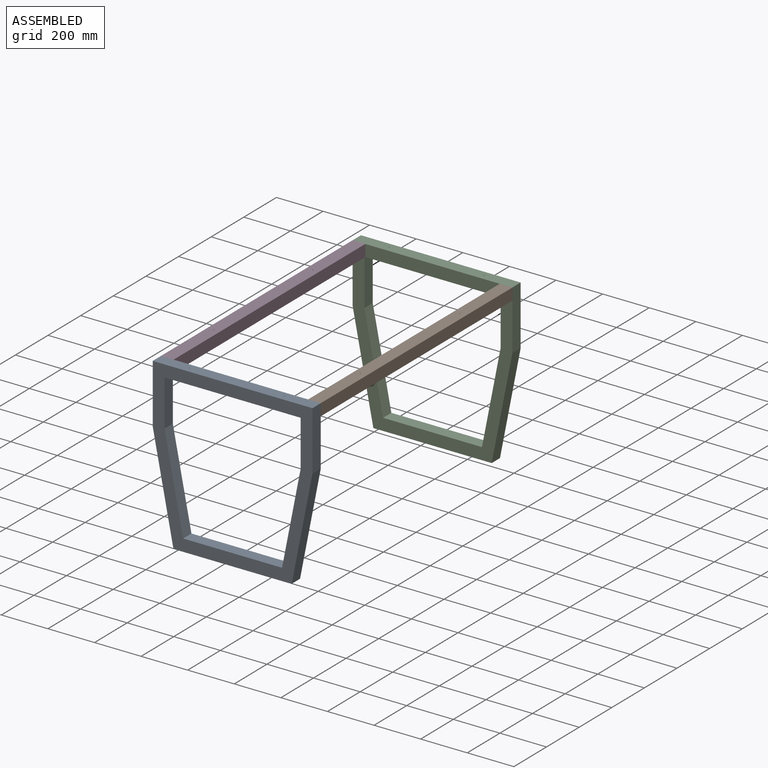
[diagram: assembled view]
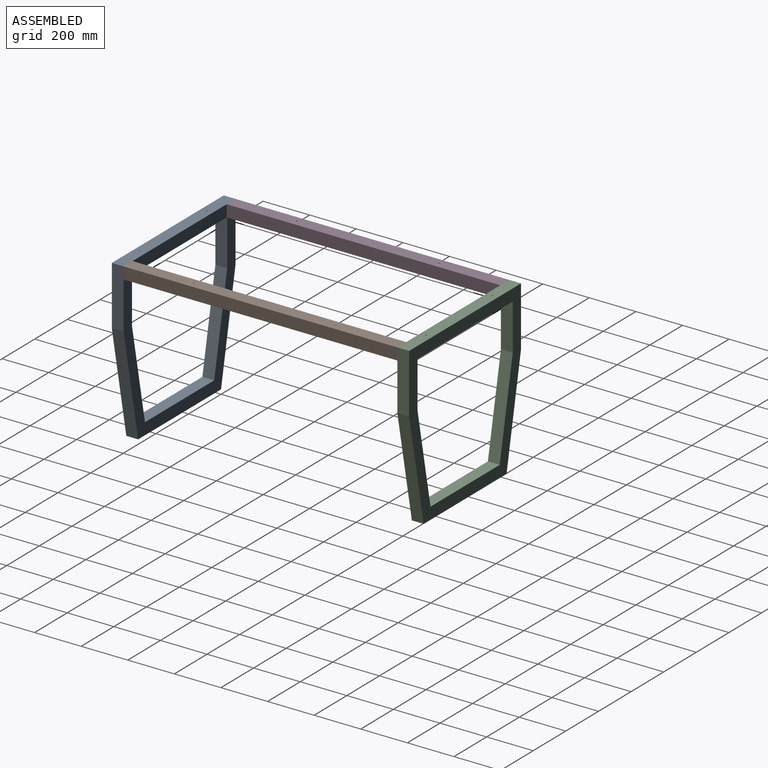
[diagram: assembled view, second angle]
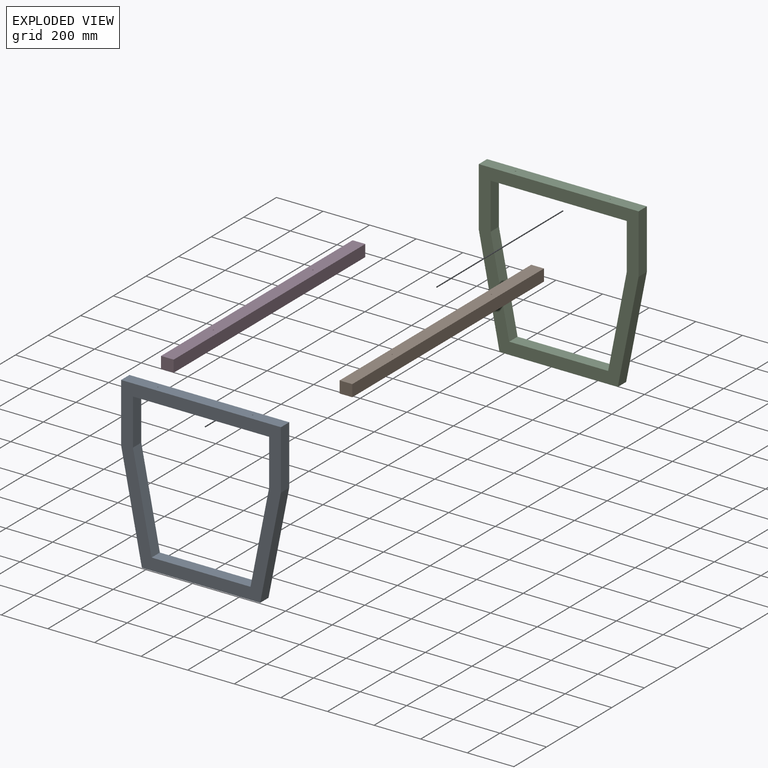
[diagram: exploded view]
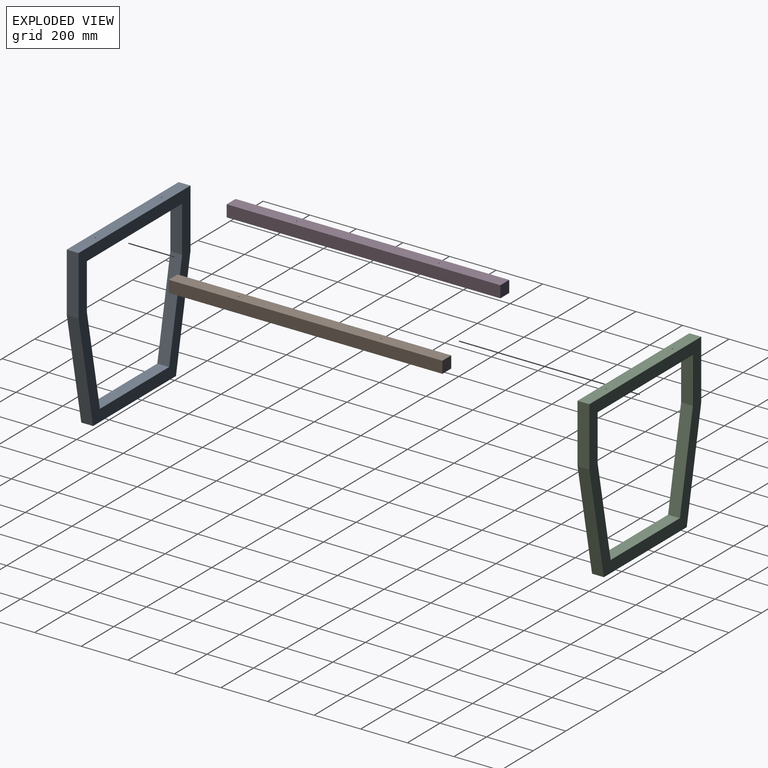
[diagram: exploded view, second angle]
ASSEMBLY  parts=4 mates=3
PART A: 16 faces, bbox 685.8x50.8x704.9 mm
  f0: plane 508x50.8mm, normal (0,0,-1), area 25806.4mm2, adj f1,f11,f12,f13
  f1: plane 450.85x88.9mm, normal (0.98,0,-0.19), area 23344.2mm2, adj f0,f2,f12,f13
  f2: plane 254x50.8mm, normal (1,0,0), area 12903.2mm2, adj f1,f3,f12,f13
  f3: plane 685.8x50.8mm, normal (0,0,1), area 34803mm2, adj f2,f4,f12,f13,f14,f15
  f4: plane 254x50.8mm, normal (-1,0,0), area 12903.2mm2, adj f3,f11,f12,f13
  f5: plane 405.01x79.86mm, normal (0.98,0,0.19), area 20970.7mm2, adj f6,f10,f12,f13
  f6: plane 198.24x50.8mm, normal (1,0,0), area 10070.6mm2, adj f5,f7,f12,f13
  f7: plane 584.2x50.8mm, normal (0,0,-1), area 29641.7mm2, adj f6,f8,f12,f13,f14,f15
  f8: plane 198.24x50.8mm, normal (-1,0,0), area 10070.6mm2, adj f7,f9,f12,f13
  f9: plane 405.01x79.86mm, normal (-0.98,0,0.19), area 20970.7mm2, adj f8,f10,f12,f13
  f10: plane 424.48x50.8mm, normal (0,0,1), area 21563.5mm2, adj f5,f9,f12,f13
  f11: plane 450.85x88.9mm, normal (-0.98,0,-0.19), area 23344.2mm2, adj f0,f4,f12,f13
  f12: plane 704.85x685.8mm, normal (0,-1,0), area 123231.6mm2, adj f0,f1,f2,f3,f4,f5,f6,f7
  f13: plane 704.85x685.8mm, normal (0,1,0), area 123231.6mm2, adj f0,f1,f2,f3,f4,f5,f6,f7
  f14: cylinder r=2.38mm len=50.8mm, axis (0,0,1), area 760.1mm2, adj f3,f7
  f15: cylinder r=2.38mm len=50.8mm, axis (0,0,1), area 760.1mm2, adj f3,f7
PART B: 8 faces, bbox 54.4x1174.8x50.8 mm
  f0: plane 1174.75x50.8mm, normal (1,0,0), area 59677.3mm2, adj f1,f3,f4,f5
  f1: plane 1174.75x54.41mm, normal (0,0,1), area 63885.8mm2, adj f0,f2,f4,f5,f6,f7
  f2: plane 1174.75x50.8mm, normal (-1,0,0), area 59677.3mm2, adj f1,f3,f4,f5
  f3: plane 1174.75x54.41mm, normal (0,0,-1), area 63885.8mm2, adj f0,f2,f4,f5,f6,f7
  f4: plane 54.41x50.8mm, normal (0,-1,0), area 2764.2mm2, adj f0,f1,f2,f3
  f5: plane 54.41x50.8mm, normal (0,1,0), area 2764.2mm2, adj f0,f1,f2,f3
  f6: cylinder r=2.38mm len=50.8mm, axis (0,0,1), area 760.1mm2, adj f1,f3
  f7: cylinder r=2.38mm len=50.8mm, axis (0,0,1), area 760.1mm2, adj f1,f3
PART C: same geometry as A
PART D: same geometry as B
PLACE A t=(-136.47,-193.42,-424.14)mm fixed
PLACE B t=(179.22,981.33,255.31)mm
PLACE C t=(-136.47,1032.13,-424.14)mm
PLACE D t=(-452.16,981.33,255.31)mm
MATE fastened D.f4 <-> A.f13  axis (0,-1,0) through (-479.37,-193.42,280.71)mm
MATE fastened A.f13 <-> B.f4  axis (0,1,0) through (206.43,-193.42,280.71)mm
MATE fastened B.f5 <-> C.f12  axis (0,1,0) through (206.43,981.33,280.71)mm
